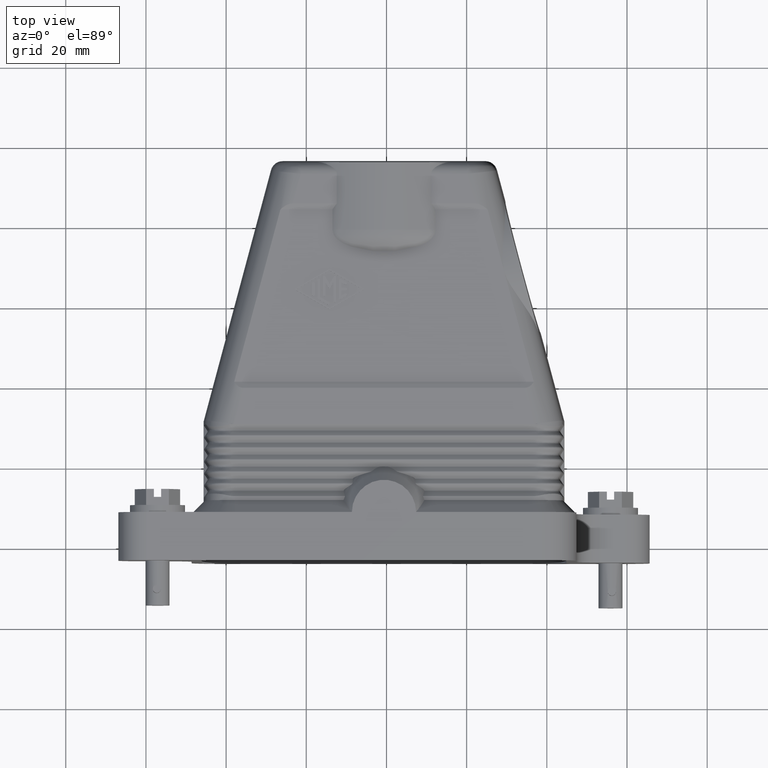
[diagram: clean part render]
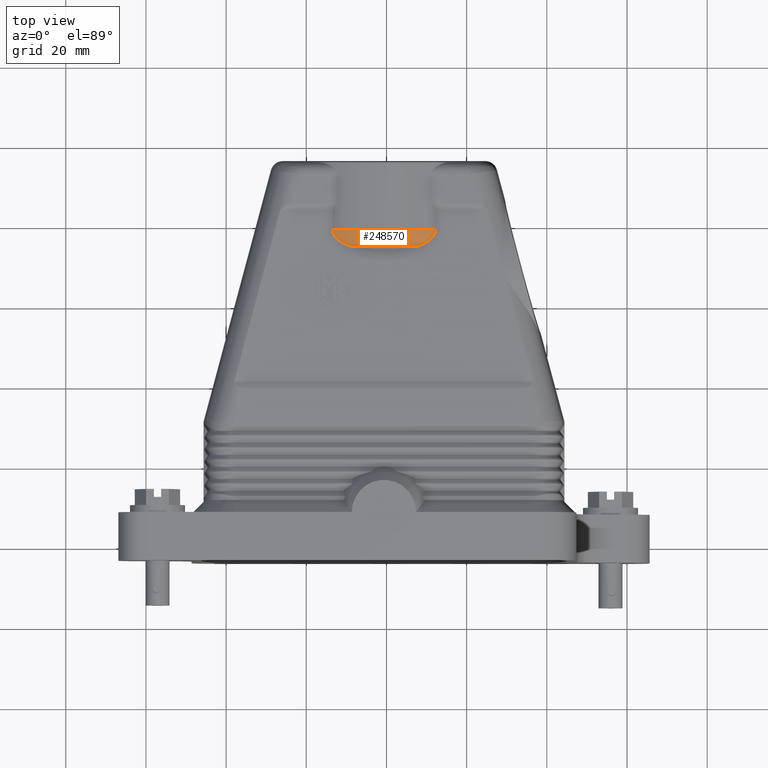
[diagram: same view with one face highlighted and labeled with its STEP entity id]
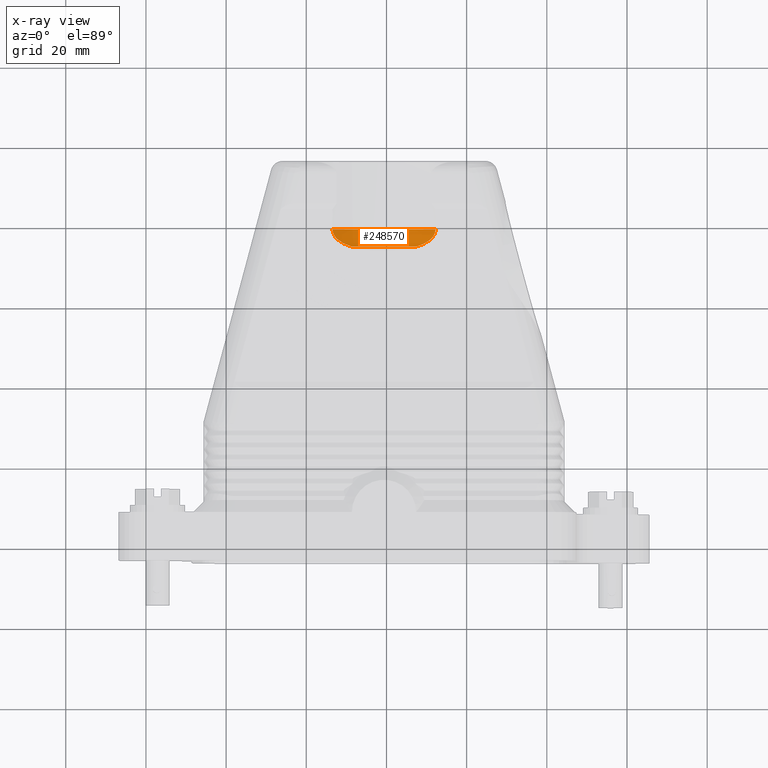
[diagram: x-ray of the same camera — body ghosted, the highlighted face saturated]
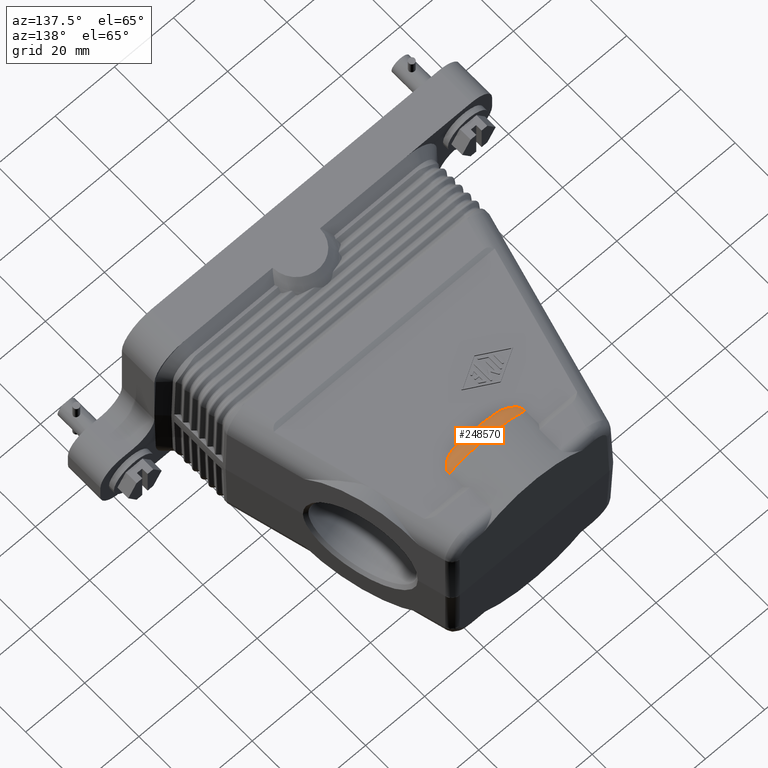
[diagram: same view with one face highlighted and labeled with its STEP entity id]
A machine part, top view. The second image highlights one B-rep face of the part: STEP entity #248570.
The next image is the same camera in x-ray: the body ghosted, the highlighted face saturated — about 0% of this face is hidden behind the body in this view.
A second angle (auxiliary view) of the same face is appended — the face is thin or edge-on in the first view.
In plain terms, the highlighted toroidal blend (fillet) surface has major radius 23 mm and minor (blend) radius 6 mm.
Its self-contained STEP definition (entity closure, byte-faithful):
#3920=CARTESIAN_POINT('',(127.518876224154,74.5367836871173,
-1.84741111297626E-13));
#3930=VERTEX_POINT('',#3920);
#3940=CARTESIAN_POINT('',(111.250935775849,74.5367836871167,
-1.82742709853301E-13));
#3950=VERTEX_POINT('',#3940);
#3980=CARTESIAN_POINT('',(119.384906,74.5367836871194,-26.));
#3990=DIRECTION('',(0.,-1.,0.));
#4000=DIRECTION('',(-1.,0.,0.));
#4010=AXIS2_PLACEMENT_3D('',#3980,#3990,#4000);
#4020=CIRCLE('',#4010,27.2426406871194);
#4030=EDGE_CURVE('',#3930,#3950,#4020,.T.);
#90140=CARTESIAN_POINT('',(106.539673421335,78.7794243742386,
-7.105427357601E-15));
#90150=VERTEX_POINT('',#90140);
#93050=CARTESIAN_POINT('',(132.230138578665,78.7794243742386,
-1.06581410364015E-14));
#93060=VERTEX_POINT('',#93050);
#93090=CARTESIAN_POINT('',(119.384906,78.7794243742386,-26.));
#93100=DIRECTION('',(0.,-1.,0.));
#93110=DIRECTION('',(-1.,0.,0.));
#93120=AXIS2_PLACEMENT_3D('',#93090,#93100,#93110);
#93130=CIRCLE('',#93120,29.);
#93140=EDGE_CURVE('',#93060,#90150,#93130,.T.);
#246480=CARTESIAN_POINT('',(119.384906,78.7794243742386,-26.));
#246490=DIRECTION('',(0.,-1.,0.));
#246500=DIRECTION('',(-1.,0.,0.));
#246510=AXIS2_PLACEMENT_3D('',#246480,#246490,#246500);
#246520=TOROIDAL_SURFACE('',#246510,23.,6.);
#246530=ORIENTED_EDGE('',*,*,#4030,.F.);
#246540=CARTESIAN_POINT('',(111.250935775842,74.5367836871195,0.));
#246550=CARTESIAN_POINT('',(111.115616697194,74.5771865749716,0.));
#246560=CARTESIAN_POINT('',(110.980865467852,74.6194911004004,
3.5527136788005E-15));
#246570=CARTESIAN_POINT('',(110.846851273491,74.663847064576,
3.5527136788005E-15));
#246580=CARTESIAN_POINT('',(110.712837026211,74.7082030462669,
3.5527136788005E-15));
#246590=CARTESIAN_POINT('',(110.57955885224,74.7546103888278,
1.77635683940025E-15));
#246600=CARTESIAN_POINT('',(110.447189762209,74.8032384336842,
1.77635683940025E-15));
#246610=CARTESIAN_POINT('',(110.31482073899,74.8518664539961,
1.77635683940025E-15));
#246620=CARTESIAN_POINT('',(110.183359336065,74.9027151795686,
1.77635683940025E-15));
#246630=CARTESIAN_POINT('',(110.052988132093,74.9559784616022,
1.77635683940025E-15));
#246640=CARTESIAN_POINT('',(109.922617197375,75.0092416336319,
1.77635683940025E-15));
#246650=CARTESIAN_POINT('',(109.793334276537,75.0649195448808,0.));
#246660=CARTESIAN_POINT('',(109.665340681618,75.1232362430493,0.));
#246670=CARTESIAN_POINT('',(109.601343854407,75.1523946056889,0.));
#246680=CARTESIAN_POINT('',(109.537669498853,75.1822132694774,
7.105427357601E-15));
#246690=CARTESIAN_POINT('',(109.474345397479,75.2127236392182,
7.105427357601E-15));
#246700=CARTESIAN_POINT('',(109.411021337974,75.2432339887859,
7.105427357601E-15));
#246710=CARTESIAN_POINT('',(109.34804741317,75.2744360686994,
-1.45732315104397E-11));
#246720=CARTESIAN_POINT('',(109.285453957716,75.3063637547778,
-1.45732315104397E-11));
#246730=CARTESIAN_POINT('',(109.222847429511,75.3382981090083,
-1.45732315104397E-11));
#246740=CARTESIAN_POINT('',(109.160684593062,75.3709240161182,
-1.48325796089921E-12));
#246750=CARTESIAN_POINT('',(109.098789091881,75.4043921884266,
-1.48325796089921E-12));
#246760=CARTESIAN_POINT('',(109.036898307756,75.4378578101251,
-1.48325796089921E-12));
#246770=CARTESIAN_POINT('',(108.975322629646,75.4721423261221,
1.77635683940025E-15));
#246780=CARTESIAN_POINT('',(108.91414778855,75.5072664782588,
1.77635683940025E-15));
#246790=CARTESIAN_POINT('',(108.791798079764,75.5775147978024,
1.77635683940025E-15));
#246800=CARTESIAN_POINT('',(108.671051412349,75.651120759517,
-3.5527136788005E-15));
#246810=CARTESIAN_POINT('',(108.552592543007,75.7282592535326,
-3.5527136788005E-15));
#246820=CARTESIAN_POINT('',(108.434133655369,75.8053977594627,
-3.5527136788005E-15));
#246830=CARTESIAN_POINT('',(108.317960263876,75.8860687893008,
-1.77635683940025E-15));
#246840=CARTESIAN_POINT('',(108.204764534808,75.9704695170029,
-1.77635683940025E-15));
#246850=CARTESIAN_POINT('',(108.148166498125,76.0126700092112,
-1.77635683940025E-15));
#246860=CARTESIAN_POINT('',(108.092312746814,76.0558035972946,
-7.105427357601E-15));
#246870=CARTESIAN_POINT('',(108.037291860491,76.0998983347889,
-7.105427357601E-15));
#246880=CARTESIAN_POINT('',(107.982270994888,76.1439930556783,
-7.105427357601E-15));
#246890=CARTESIAN_POINT('',(107.928082777569,76.1890490050344,
1.77635683940025E-15));
#246900=CARTESIAN_POINT('',(107.874818655067,76.2350969685198,
1.77635683940025E-15));
#246910=CARTESIAN_POINT('',(107.821554576802,76.2811448937617,
1.77635683940025E-15));
#246920=CARTESIAN_POINT('',(107.769214302011,76.3281849721408,
-1.51096912759385E-11));
#246930=CARTESIAN_POINT('',(107.71789366159,76.3762509907316,
-1.51096912759385E-11));
#246940=CARTESIAN_POINT('',(107.692233341623,76.4002839997997,
-1.51096912759385E-11));
#246950=CARTESIAN_POINT('',(107.666827985352,76.4245735636381,
-2.64677169070637E-13));
#246960=CARTESIAN_POINT('',(107.641690112934,76.4491242103658,
-2.64677169070637E-13));
#246970=CARTESIAN_POINT('',(107.616548153549,76.4736788485892,
-2.64677169070637E-13));
#246980=CARTESIAN_POINT('',(107.591696215687,76.4984714796803,
-9.2370555648813E-14));
#246990=CARTESIAN_POINT('',(107.567061591549,76.5235950392981,
-9.2370555648813E-14));
#247000=CARTESIAN_POINT('',(107.517799417303,76.5738349441023,
-9.2370555648813E-14));
#247010=CARTESIAN_POINT('',(107.469500858693,76.6253082661569,
-3.05604430650419E-11));
#247020=CARTESIAN_POINT('',(107.422378143104,76.6779827269096,
-3.05604430650419E-11));
#247030=CARTESIAN_POINT('',(107.375255520877,76.7306570833005,
-3.05604430650419E-11));
#247040=CARTESIAN_POINT('',(107.329309294809,76.7845321215517,
8.88178419700125E-15));
#247050=CARTESIAN_POINT('',(107.284746604239,76.8395652293535,
8.88178419700125E-15));
#247060=CARTESIAN_POINT('',(107.24018396396,76.8945982750489,
8.88178419700125E-15));
#247070=CARTESIAN_POINT('',(107.197005478238,76.9507887629895,0.));
#247080=CARTESIAN_POINT('',(107.155410561465,77.0080844266042,0.));
#247090=CARTESIAN_POINT('',(107.113815644982,77.0653800898196,0.));
#247100=CARTESIAN_POINT('',(107.073804948112,77.1237801112672,
1.77635683940025E-15));
#247110=CARTESIAN_POINT('',(107.035567527643,77.1832242523688,
1.77635683940025E-15));
#247120=CARTESIAN_POINT('',(106.997330052145,77.2426684790175,
1.77635683940025E-15));
#247130=CARTESIAN_POINT('',(106.960866473441,77.3031558248856,
-1.57935886591076E-11));
#247140=CARTESIAN_POINT('',(106.926353202588,77.364621071453,
-1.57935886591076E-11));
#247150=CARTESIAN_POINT('',(106.891839821136,77.426086514989,
-1.57935886591076E-11));
#247160=CARTESIAN_POINT('',(106.85927724548,77.4885287337075,
-1.59872115546023E-14));
#247170=CARTESIAN_POINT('',(106.828827864271,77.5518820210026,
-1.59872115546023E-14));
#247180=CARTESIAN_POINT('',(106.798407086103,77.6151757965229,
-1.59872115546023E-14));
#247190=CARTESIAN_POINT('',(106.769974442741,77.6796270284323,
-5.40012479177676E-13));
#247200=CARTESIAN_POINT('',(106.743719305586,77.7452344310098,
-5.40012479177676E-13));
#247210=CARTESIAN_POINT('',(106.730594975123,77.7780300407681,
-5.40012479177676E-13));
#247220=CARTESIAN_POINT('',(106.718022191266,77.8110972633331,
-1.71773706370004E-12));
#247230=CARTESIAN_POINT('',(106.706032375027,77.8444082912509,
-1.71773706370004E-12));
#247240=CARTESIAN_POINT('',(106.69404257594,77.8777192715163,
-1.71773706370004E-12));
#247250=CARTESIAN_POINT('',(106.682635833659,77.9112738859961,
-2.67341704329738E-12));
#247260=CARTESIAN_POINT('',(106.671840618107,77.9450417072823,
-2.67341704329738E-12));
#247270=CARTESIAN_POINT('',(106.661045412655,77.978809496976,
-2.67341704329738E-12));
#247280=CARTESIAN_POINT('',(106.650861818456,78.0127902978836,
-2.71960232112178E-12));
#247290=CARTESIAN_POINT('',(106.641314794315,78.0469515373031,
-2.71960232112178E-12));
#247300=CARTESIAN_POINT('',(106.631767774043,78.0811127628766,
-2.71960232112178E-12));
#247310=CARTESIAN_POINT('',(106.622857400063,78.1154542087884,
-1.97708516225248E-12));
#247320=CARTESIAN_POINT('',(106.614604652455,78.1499417308442,
-1.97708516225248E-12));
#247330=CARTESIAN_POINT('',(106.606351903415,78.1844292588805,
-1.97708516225248E-12));
#247340=CARTESIAN_POINT('',(106.598756844868,78.2190626257394,
-1.03383968053095E-12));
#247350=CARTESIAN_POINT('',(106.591836127804,78.2538067962237,
-1.03383968053095E-12));
#247360=CARTESIAN_POINT('',(106.58491540512,78.2885509949172,
-1.03383968053095E-12));
#247370=CARTESIAN_POINT('',(106.578669072196,78.323405745886,
-3.5349501104065E-13));
#247380=CARTESIAN_POINT('',(106.573109245236,78.3583359122995,
-3.5349501104065E-13));
#247390=CARTESIAN_POINT('',(106.56754940983,78.3932661317748,
-3.5349501104065E-13));
#247400=CARTESIAN_POINT('',(106.562676109536,78.4282715081557,
-6.57252030578093E-14));
#247410=CARTESIAN_POINT('',(106.55849689296,78.4633176965486,
-6.57252030578093E-14));
#247420=CARTESIAN_POINT('',(106.554317666772,78.4983639655482,
-6.57252030578093E-14));
#247430=CARTESIAN_POINT('',(106.550832531866,78.533450789283,
-5.32907051820075E-15));
#247440=CARTESIAN_POINT('',(106.548044635987,78.5685455996333,
-5.32907051820075E-15));
#247450=CARTESIAN_POINT('',(106.545256270236,78.603646324857,
-5.32907051820075E-15));
#247460=CARTESIAN_POINT('',(106.54316640851,78.6387296888982,
-1.77635683940025E-15));
#247470=CARTESIAN_POINT('',(106.541771192996,78.6738373257423,
-1.77635683940025E-15));
#247480=CARTESIAN_POINT('',(106.540375325813,78.7089613604429,
-1.77635683940025E-15));
#247490=CARTESIAN_POINT('',(106.539673421335,78.7441683574912,0.));
#247500=CARTESIAN_POINT('',(106.539673421335,78.7794243742387,0.));
#247510=B_SPLINE_CURVE_WITH_KNOTS('',3,(#246540,#246550,#246560,#246570,
#246580,#246590,#246600,#246610,#246620,#246630,#246640,#246650,#246660,
#246670,#246680,#246690,#246700,#246710,#246720,#246730,#246740,#246750,
#246760,#246770,#246780,#246790,#246800,#246810,#246820,#246830,#246840,
#246850,#246860,#246870,#246880,#246890,#246900,#246910,#246920,#246930,
#246940,#246950,#246960,#246970,#246980,#246990,#247000,#247010,#247020,
#247030,#247040,#247050,#247060,#247070,#247080,#247090,#247100,#247110,
#247120,#247130,#247140,#247150,#247160,#247170,#247180,#247190,#247200,
#247210,#247220,#247230,#247240,#247250,#247260,#247270,#247280,#247290,
#247300,#247310,#247320,#247330,#247340,#247350,#247360,#247370,#247380,
#247390,#247400,#247410,#247420,#247430,#247440,#247450,#247460,#247470,
#247480,#247490,#247500),.UNSPECIFIED.,.F.,.F.,(4,3,3,3,3,3,3,3,3,3,3,3,
3,3,3,3,3,3,3,3,3,3,3,3,3,3,3,3,3,3,3,3,4),(0.,0.423606401994398,
0.846897060301161,1.2696777653433,1.69189699839407,1.90282092321614,
2.11365344859319,2.32449813515683,2.53586973586188,2.95967032762391,
3.38359305882486,3.59526135292791,3.80664106305251,4.01772349328153,
4.12316490996071,4.22859618844289,4.44020116671773,4.6524755737027,
4.86493023111223,5.07717589335908,5.28894467660727,5.50011495587307,
5.71140977791717,5.81750840866045,5.92379757067893,6.03018706233888,
6.136590765526,6.24292860928631,6.34912863291447,6.4551292531127,
6.56088183748115,6.66636716440296,6.77198199247705),.UNSPECIFIED.);
#247520=EDGE_CURVE('',#3950,#90150,#247510,.T.);
#247530=ORIENTED_EDGE('',*,*,#247520,.F.);
#247540=ORIENTED_EDGE('',*,*,#93140,.T.);
#247550=CARTESIAN_POINT('',(132.230138578665,78.7794243742387,
1.77635683940025E-15));
#247560=CARTESIAN_POINT('',(132.230138578665,78.7441683574912,
1.77635683940025E-15));
#247570=CARTESIAN_POINT('',(132.229436674187,78.708961360443,
-1.77635683940025E-15));
#247580=CARTESIAN_POINT('',(132.228040807004,78.6738373257423,
-1.77635683940025E-15));
#247590=CARTESIAN_POINT('',(132.22664559149,78.6387296888985,
-1.77635683940025E-15));
#247600=CARTESIAN_POINT('',(132.224555729764,78.603646324857,0.));
#247610=CARTESIAN_POINT('',(132.221767364013,78.5685455996334,0.));
#247620=CARTESIAN_POINT('',(132.218979468134,78.5334507892831,0.));
#247630=CARTESIAN_POINT('',(132.215494333228,78.4983639655484,
-6.3948846218409E-14));
#247640=CARTESIAN_POINT('',(132.21131510704,78.4633176965488,
-6.3948846218409E-14));
#247650=CARTESIAN_POINT('',(132.207135890464,78.4282715081574,
-6.3948846218409E-14));
#247660=CARTESIAN_POINT('',(132.202262590171,78.3932661317763,
-3.5527136788005E-13));
#247670=CARTESIAN_POINT('',(132.196702754764,78.3583359122999,
-3.5527136788005E-13));
#247680=CARTESIAN_POINT('',(132.191142927804,78.3234057458882,
-3.5527136788005E-13));
#247690=CARTESIAN_POINT('',(132.18489659488,78.2885509949194,
-1.02140518265514E-12));
#247700=CARTESIAN_POINT('',(132.177975872196,78.253806796224,
-1.02140518265514E-12));
#247710=CARTESIAN_POINT('',(132.171055155132,78.2190626257399,
-1.02140518265514E-12));
#247720=CARTESIAN_POINT('',(132.163460096585,78.1844292588808,
-1.96820337805548E-12));
#247730=CARTESIAN_POINT('',(132.155207347545,78.1499417308446,
-1.96820337805548E-12));
#247740=CARTESIAN_POINT('',(132.146954599938,78.1154542087915,
-1.96820337805548E-12));
#247750=CARTESIAN_POINT('',(132.138044225958,78.0811127628797,
-2.71072053692478E-12));
#247760=CARTESIAN_POINT('',(132.128497205686,78.0469515373036,
-2.71072053692478E-12));
#247770=CARTESIAN_POINT('',(132.118950181545,78.0127902978871,
-2.71072053692478E-12));
#247780=CARTESIAN_POINT('',(132.108766587346,77.9788094969793,
-2.66808797277918E-12));
#247790=CARTESIAN_POINT('',(132.097971381893,77.9450417072828,
-2.66808797277918E-12));
#247800=CARTESIAN_POINT('',(132.087176166341,77.9112738859937,
-2.66808797277918E-12));
#247810=CARTESIAN_POINT('',(132.075769424059,77.8777192715137,
-1.72306613421824E-12));
#247820=CARTESIAN_POINT('',(132.063779624973,77.8444082912515,
-1.72306613421824E-12));
#247830=CARTESIAN_POINT('',(132.051789808734,77.8110972633337,
-1.72306613421824E-12));
#247840=CARTESIAN_POINT('',(132.039217024877,77.7780300407688,
-5.45341549695877E-13));
#247850=CARTESIAN_POINT('',(132.026092694414,77.7452344310105,
-5.45341549695877E-13));
#247860=CARTESIAN_POINT('',(131.999837557272,77.6796270284651,
-5.45341549695877E-13));
#247870=CARTESIAN_POINT('',(131.971404913913,77.6151757965547,
-1.4210854715202E-14));
#247880=CARTESIAN_POINT('',(131.94098413573,77.5518820210034,
-1.4210854715202E-14));
#247890=CARTESIAN_POINT('',(131.910534754537,77.4885287337433,
-1.4210854715202E-14));
#247900=CARTESIAN_POINT('',(131.877972178884,77.4260865150236,
-1.57989177296258E-11));
#247910=CARTESIAN_POINT('',(131.843458797412,77.3646210714538,
-1.57989177296258E-11));
#247920=CARTESIAN_POINT('',(131.808945526559,77.3031558248867,
-1.57989177296258E-11));
#247930=CARTESIAN_POINT('',(131.772481947855,77.2426684790183,0.));
#247940=CARTESIAN_POINT('',(131.734244472358,77.1832242523698,0.));
#247950=CARTESIAN_POINT('',(131.696007051914,77.1237801113065,0.));
#247960=CARTESIAN_POINT('',(131.655996355045,77.0653800898574,0.));
#247970=CARTESIAN_POINT('',(131.614401438535,77.0080844266052,0.));
#247980=CARTESIAN_POINT('',(131.572806521738,76.9507887629563,0.));
#247990=CARTESIAN_POINT('',(131.529628036015,76.894598275017,
1.77635683940025E-15));
#248000=CARTESIAN_POINT('',(131.485065395762,76.8395652293546,
1.77635683940025E-15));
#248010=CARTESIAN_POINT('',(131.440502705192,76.7845321215529,
1.77635683940025E-15));
#248020=CARTESIAN_POINT('',(131.394556479124,76.7306570833017,
-3.05586667082025E-11));
#248030=CARTESIAN_POINT('',(131.347433856897,76.6779827269108,
-3.05586667082025E-11));
#248040=CARTESIAN_POINT('',(131.300311141329,76.6253082661813,
-3.05586667082025E-11));
#248050=CARTESIAN_POINT('',(131.25201258272,76.5738349441257,
-9.76996261670138E-14));
#248060=CARTESIAN_POINT('',(131.202750408452,76.5235950392993,
-9.76996261670138E-14));
#248070=CARTESIAN_POINT('',(131.178115784315,76.4984714796816,
-9.76996261670138E-14));
#248080=CARTESIAN_POINT('',(131.153263846452,76.4736788485904,
-2.61124455391837E-13));
#248090=CARTESIAN_POINT('',(131.128121887067,76.449124210367,
-2.61124455391837E-13));
#248100=CARTESIAN_POINT('',(131.10298401465,76.4245735636394,
-2.61124455391837E-13));
#248110=CARTESIAN_POINT('',(131.077578658379,76.400283999801,
-1.51150203464567E-11));
#248120=CARTESIAN_POINT('',(131.051918338411,76.3762509907329,
-1.51150203464567E-11));
#248130=CARTESIAN_POINT('',(131.00059769798,76.3281849721324,
-1.51150203464567E-11));
#248140=CARTESIAN_POINT('',(130.948257423188,76.2811448937534,0.));
#248150=CARTESIAN_POINT('',(130.894993344934,76.2350969685211,0.));
#248160=CARTESIAN_POINT('',(130.841729222441,76.1890490050424,0.));
#248170=CARTESIAN_POINT('',(130.787541005122,76.1439930556862,
1.77635683940025E-15));
#248180=CARTESIAN_POINT('',(130.732520139511,76.0998983347903,
1.77635683940025E-15));
#248190=CARTESIAN_POINT('',(130.677499253182,76.0558035972914,
1.77635683940025E-15));
#248200=CARTESIAN_POINT('',(130.621645501872,76.0126700092083,
3.5527136788005E-15));
#248210=CARTESIAN_POINT('',(130.565047465194,75.9704695170043,
3.5527136788005E-15));
#248220=CARTESIAN_POINT('',(130.451851736126,75.8860687893022,
3.5527136788005E-15));
#248230=CARTESIAN_POINT('',(130.335678344633,75.8053977594641,
1.77635683940025E-15));
#248240=CARTESIAN_POINT('',(130.217219456995,75.728259253534,
1.77635683940025E-15));
#248250=CARTESIAN_POINT('',(130.098760587653,75.6511207595185,
1.77635683940025E-15));
#248260=CARTESIAN_POINT('',(129.978013920239,75.5775147978038,0.));
#248270=CARTESIAN_POINT('',(129.855664211452,75.5072664782602,0.));
#248280=CARTESIAN_POINT('',(129.794489370357,75.4721423261235,0.));
#248290=CARTESIAN_POINT('',(129.732913692247,75.4378578101266,
-1.48148160405981E-12));
#248300=CARTESIAN_POINT('',(129.671022908122,75.4043921884281,
-1.48148160405981E-12));
#248310=CARTESIAN_POINT('',(129.609127406972,75.370924016137,
-1.48148160405981E-12));
#248320=CARTESIAN_POINT('',(129.546964570524,75.3382981090263,
-1.45767842241185E-11));
#248330=CARTESIAN_POINT('',(129.484358042287,75.3063637547793,
-1.45767842241185E-11));
#248340=CARTESIAN_POINT('',(129.421764586837,75.2744360687028,
-1.45767842241185E-11));
#248350=CARTESIAN_POINT('',(129.358790662032,75.2432339887891,
-1.77635683940025E-15));
#248360=CARTESIAN_POINT('',(129.295466602524,75.2127236392196,
-1.77635683940025E-15));
#248370=CARTESIAN_POINT('',(129.232142501153,75.1822132694804,
-1.77635683940025E-15));
#248380=CARTESIAN_POINT('',(129.168468145599,75.1523946056917,
1.77635683940025E-15));
#248390=CARTESIAN_POINT('',(129.104471318385,75.1232362430507,
1.77635683940025E-15));
#248400=CARTESIAN_POINT('',(128.976477723466,75.0649195448821,
1.77635683940025E-15));
#248410=CARTESIAN_POINT('',(128.847194802628,75.0092416336334,
3.5527136788005E-15));
#248420=CARTESIAN_POINT('',(128.716823867911,74.9559784616036,
3.5527136788005E-15));
#248430=CARTESIAN_POINT('',(128.586452663939,74.90271517957,
3.5527136788005E-15));
#248440=CARTESIAN_POINT('',(128.454991261014,74.8518664539975,
-1.77635683940025E-15));
#248450=CARTESIAN_POINT('',(128.322622237795,74.8032384336856,
-1.77635683940025E-15));
#248460=CARTESIAN_POINT('',(128.190253147764,74.7546103888292,
-1.77635683940025E-15));
#248470=CARTESIAN_POINT('',(128.056974973793,74.7082030462683,
-5.32907051820075E-15));
#248480=CARTESIAN_POINT('',(127.922960726513,74.6638470645773,
-5.32907051820075E-15));
#248490=CARTESIAN_POINT('',(127.788946532153,74.6194911004017,
-5.32907051820075E-15));
#248500=CARTESIAN_POINT('',(127.65419530281,74.577186574973,0.));
#248510=CARTESIAN_POINT('',(127.518876224163,74.5367836871208,0.));
#248520=B_SPLINE_CURVE_WITH_KNOTS('',3,(#247550,#247560,#247570,#247580,
#247590,#247600,#247610,#247620,#247630,#247640,#247650,#247660,#247670,
#247680,#247690,#247700,#247710,#247720,#247730,#247740,#247750,#247760,
#247770,#247780,#247790,#247800,#247810,#247820,#247830,#247840,#247850,
#247860,#247870,#247880,#247890,#247900,#247910,#247920,#247930,#247940,
#247950,#247960,#247970,#247980,#247990,#248000,#248010,#248020,#248030,
#248040,#248050,#248060,#248070,#248080,#248090,#248100,#248110,#248120,
#248130,#248140,#248150,#248160,#248170,#248180,#248190,#248200,#248210,
#248220,#248230,#248240,#248250,#248260,#248270,#248280,#248290,#248300,
#248310,#248320,#248330,#248340,#248350,#248360,#248370,#248380,#248390,
#248400,#248410,#248420,#248430,#248440,#248450,#248460,#248470,#248480,
#248490,#248500,#248510),.UNSPECIFIED.,.F.,.F.,(4,3,3,3,3,3,3,3,3,3,3,3,
3,3,3,3,3,3,3,3,3,3,3,3,3,3,3,3,3,3,3,3,4),(0.,0.105614828074071,
0.211100154995739,0.316852739364123,0.42285335956224,0.529053383190325,
0.63539122695056,0.741794930137598,0.848184421797469,0.95447358381591,
1.06057221455912,1.27186703660308,1.48303731586877,1.69480609911678,
1.90705176136344,2.11950641877287,2.33178082575772,2.54338580403244,
2.64881708251454,2.75425849919365,2.96534092942255,3.17672063954697,
3.38838893364982,3.8123116648505,4.23611225661222,4.44748385731706,
4.65832854388067,4.86916106925763,5.08008499407952,5.50230422712999,
5.92508493217178,6.34837559047826,6.77198199247225),.UNSPECIFIED.);
#248530=EDGE_CURVE('',#93060,#3930,#248520,.T.);
#248540=ORIENTED_EDGE('',*,*,#248530,.F.);
#248550=EDGE_LOOP('',(#248540,#247540,#247530,#246530));
#248560=FACE_OUTER_BOUND('',#248550,.T.);
#248570=ADVANCED_FACE('',(#248560),#246520,.T.);